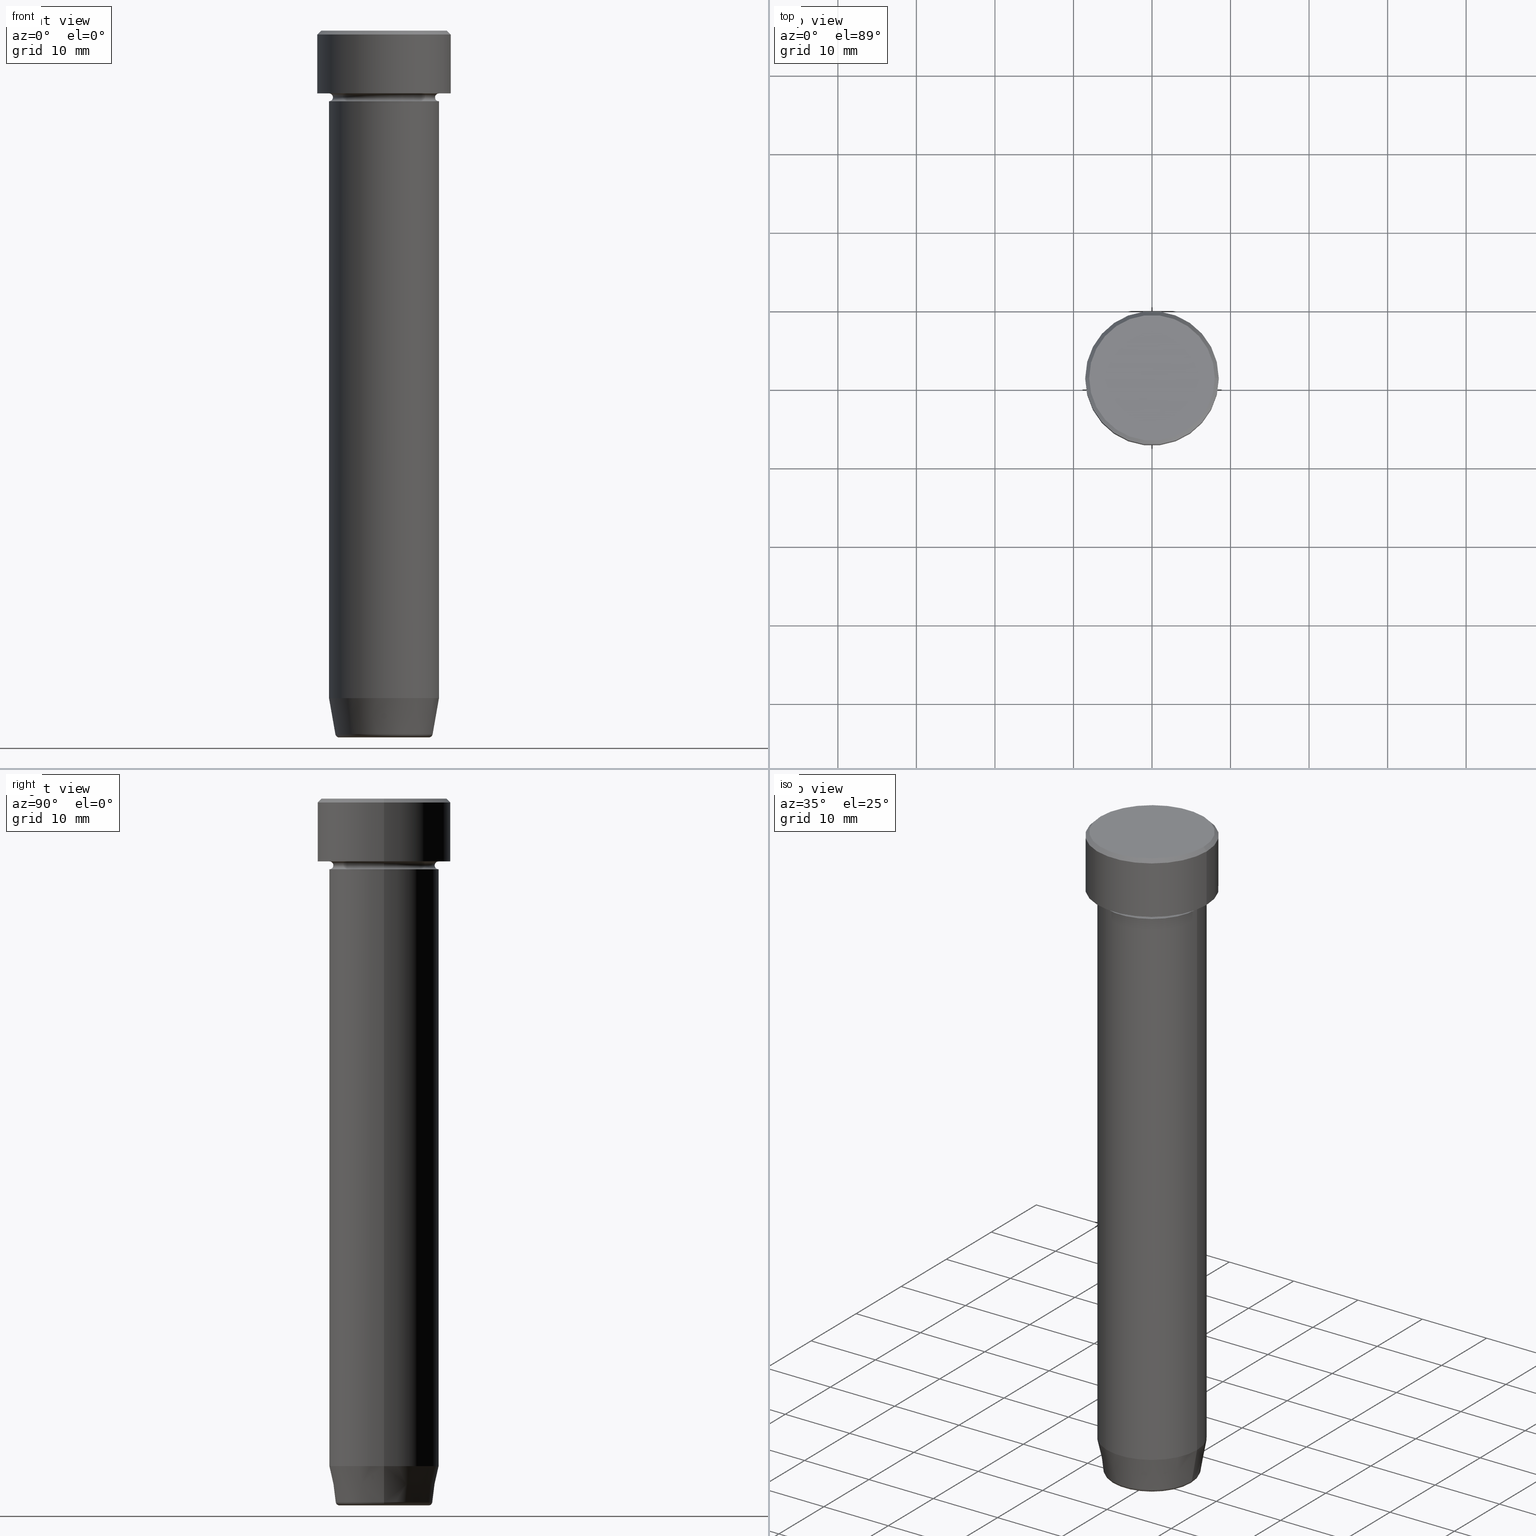
[diagram: canonical four-view strip — front | top / right | iso, engineering-drawing reading convention]
A machine part, canonical four-view strip (front | top / right | iso — engineering-drawing reading convention). The complete STEP part file that produces these views, byte-faithful:
ISO-10303-21;
HEADER;
FILE_DESCRIPTION (( 'STEP AP203' ),
    '1' );
FILE_NAME ('5708.STEP',
    '2024-01-02T23:20:32',
    ( '' ),
    ( '' ),
    'SwSTEP 2.0',
    'SolidWorks 2019',
    '' );
FILE_SCHEMA (( 'CONFIG_CONTROL_DESIGN' ));
ENDSEC;

DATA;
#1 = EDGE_CURVE ( 'NONE', #329, #152, #398, .T. ) ;
#2 = EDGE_CURVE ( 'NONE', #10, #289, #490, .T. ) ;
#3 = DATE_TIME_ROLE ( 'classification_date' ) ;
#4 = DIRECTION ( 'NONE',  ( -0.000000000000000000, -0.000000000000000000, 1.000000000000000000 ) ) ;
#5 = DIRECTION ( 'NONE',  ( 1.000000000000000000, 0.000000000000000000, 0.000000000000000000 ) ) ;
#6 = AXIS2_PLACEMENT_3D ( 'NONE', #166, #589, #526 ) ;
#7 = AXIS2_PLACEMENT_3D ( 'NONE', #474, #238, #11 ) ;
#8 = DIRECTION ( 'NONE',  ( 0.1736481776669304145, 0.000000000000000000, 0.9848077530122080203 ) ) ;
#9 = FACE_OUTER_BOUND ( 'NONE', #115, .T. ) ;
#10 = VERTEX_POINT ( 'NONE', #430 ) ;
#11 = DIRECTION ( 'NONE',  ( -1.000000000000000000, 0.000000000000000000, 0.000000000000000000 ) ) ;
#12 = ORIENTED_EDGE ( 'NONE', *, *, #503, .F. ) ;
#13 = AXIS2_PLACEMENT_3D ( 'NONE', #127, #298, #435 ) ;
#14 = DIRECTION ( 'NONE',  ( 1.000000000000000000, 0.000000000000000000, 0.000000000000000000 ) ) ;
#15 = ORIENTED_EDGE ( 'NONE', *, *, #1, .T. ) ;
#16 = EDGE_CURVE ( 'NONE', #152, #329, #527, .T. ) ;
#17 = APPROVAL ( #363, 'NEUR�EN�' ) ;
#18 = ADVANCED_FACE ( 'NONE', ( #297 ), #76, .T. ) ;
#19 = CARTESIAN_POINT ( 'NONE',  ( -7.000000000000000888, 0.000000000000000000, -8.500000000000000000 ) ) ;
#20 = EDGE_LOOP ( 'NONE', ( #566, #425, #274, #246 ) ) ;
#21 = ORIENTED_EDGE ( 'NONE', *, *, #156, .T. ) ;
#22 = ORIENTED_EDGE ( 'NONE', *, *, #574, .T. ) ;
#23 = CARTESIAN_POINT ( 'NONE',  ( -8.000000000000000000, 0.000000000000000000, 0.000000000000000000 ) ) ;
#24 = MANIFOLD_SOLID_BREP ( 'Zkosen�1', #83 ) ;
#25 = ORIENTED_EDGE ( 'NONE', *, *, #514, .T. ) ;
#26 = VERTEX_POINT ( 'NONE', #172 ) ;
#27 = MANIFOLD_SOLID_BREP ( 'Zaoblit4', #262 ) ;
#28 = DIRECTION ( 'NONE',  ( 1.000000000000000000, 0.000000000000000000, 0.000000000000000000 ) ) ;
#29 = DIRECTION ( 'NONE',  ( 1.000000000000000000, 0.000000000000000000, 0.000000000000000000 ) ) ;
#30 = DIRECTION ( 'NONE',  ( 1.000000000000000000, 0.000000000000000000, 0.000000000000000000 ) ) ;
#31 =( LENGTH_UNIT ( ) NAMED_UNIT ( * ) SI_UNIT ( .MILLI., .METRE. ) );
#32 = DIRECTION ( 'NONE',  ( -0.000000000000000000, -0.000000000000000000, 1.000000000000000000 ) ) ;
#33 = LOCAL_TIME ( 0, 20, 32.00000000000000000, #92 ) ;
#34 = AXIS2_PLACEMENT_3D ( 'NONE', #269, #502, #324 ) ;
#35 = EDGE_CURVE ( 'NONE', #397, #561, #563, .T. ) ;
#36 = EDGE_CURVE ( 'NONE', #10, #407, #271, .T. ) ;
#37 = FACE_OUTER_BOUND ( 'NONE', #525, .T. ) ;
#38 = EDGE_CURVE ( 'NONE', #418, #429, #314, .T. ) ;
#39 = CARTESIAN_POINT ( 'NONE',  ( 6.191219157375138948, 0.000000000000000000, -89.58682408883345261 ) ) ;
#40 = CYLINDRICAL_SURFACE ( 'NONE', #144, 6.999999999999999112 ) ;
#41 = EDGE_CURVE ( 'NONE', #138, #429, #303, .T. ) ;
#42 = COORDINATED_UNIVERSAL_TIME_OFFSET ( 1, 0, .AHEAD. ) ;
#43 = CARTESIAN_POINT ( 'NONE',  ( 0.000000000000000000, 0.000000000000000000, -8.000000000000000000 ) ) ;
#44 = CIRCLE ( 'NONE', #328, 8.500000000000000000 ) ;
#45 = TOROIDAL_SURFACE ( 'NONE', #460, 7.000000000000000888, 0.5000000000000000000 ) ;
#46 = PERSON_AND_ORGANIZATION ( #85, #449 ) ;
#47 = DIRECTION ( 'NONE',  ( 1.000000000000000000, 0.000000000000000000, 0.000000000000000000 ) ) ;
#48 = ORIENTED_EDGE ( 'NONE', *, *, #156, .F. ) ;
#49 = EDGE_CURVE ( 'NONE', #418, #96, #94, .T. ) ;
#50 = EDGE_CURVE ( 'NONE', #287, #285, #212, .T. ) ;
#51 = CARTESIAN_POINT ( 'NONE',  ( 0.000000000000000000, 0.000000000000000000, 0.000000000000000000 ) ) ;
#52 = CARTESIAN_POINT ( 'NONE',  ( 0.000000000000000000, 0.000000000000000000, -8.500000000000000000 ) ) ;
#53 = DIRECTION ( 'NONE',  ( -1.000000000000000000, 0.000000000000000000, 0.000000000000000000 ) ) ;
#54 = AXIS2_PLACEMENT_3D ( 'NONE', #120, #258, #266 ) ;
#55 = AXIS2_PLACEMENT_3D ( 'NONE', #87, #267, #547 ) ;
#56 = DIRECTION ( 'NONE',  ( 1.000000000000000000, 0.000000000000000000, 0.000000000000000000 ) ) ;
#57 = EDGE_CURVE ( 'NONE', #285, #287, #550, .T. ) ;
#58 = ORIENTED_EDGE ( 'NONE', *, *, #50, .F. ) ;
#59 = CARTESIAN_POINT ( 'NONE',  ( 0.000000000000000000, 4.898587196589413815E-15, -90.00000000000000000 ) ) ;
#60 = VERTEX_POINT ( 'NONE', #39 ) ;
#61 = ADVANCED_BREP_SHAPE_REPRESENTATION ( '5708', ( #24, #27, #292 ), #431 ) ;
#62 = AXIS2_PLACEMENT_3D ( 'NONE', #170, #484, #82 ) ;
#63 = CARTESIAN_POINT ( 'NONE',  ( -6.999999999999999112, 8.572527594031472204E-16, -84.99999999999998579 ) ) ;
#64 = ORIENTED_EDGE ( 'NONE', *, *, #351, .F. ) ;
#65 = EDGE_LOOP ( 'NONE', ( #573, #64 ) ) ;
#66 = PRODUCT_DEFINITION ( 'NEZN�M�', '', #402, #222 ) ;
#67 = ADVANCED_FACE ( 'NONE', ( #345 ), #128, .T. ) ;
#68 = CONICAL_SURFACE ( 'NONE', #100, 6.118365096457672792, 0.1745329251994330311 ) ;
#69 = CYLINDRICAL_SURFACE ( 'NONE', #167, 6.999999999999999112 ) ;
#70 = ORIENTED_EDGE ( 'NONE', *, *, #16, .T. ) ;
#71 = VERTEX_POINT ( 'NONE', #590 ) ;
#72 = CARTESIAN_POINT ( 'NONE',  ( 0.000000000000000000, 0.000000000000000000, -90.00000000000000000 ) ) ;
#73 = EDGE_CURVE ( 'NONE', #289, #112, #157, .T. ) ;
#74 = ORIENTED_EDGE ( 'NONE', *, *, #125, .F. ) ;
#75 = DIRECTION ( 'NONE',  ( -0.000000000000000000, -0.000000000000000000, 1.000000000000000000 ) ) ;
#76 = PLANE ( 'NONE',  #150 ) ;
#77 = CIRCLE ( 'NONE', #556, 0.5000000000000004441 ) ;
#78 = LINE ( 'NONE', #441, #183 ) ;
#79 = TOROIDAL_SURFACE ( 'NONE', #522, 5.698815280869032662, 0.5000000000000000000 ) ;
#80 = ORIENTED_EDGE ( 'NONE', *, *, #351, .T. ) ;
#81 = DIRECTION ( 'NONE',  ( -1.000000000000000000, 0.000000000000000000, 0.000000000000000000 ) ) ;
#82 = DIRECTION ( 'NONE',  ( -1.000000000000000000, -1.224646799147351482E-16, 0.000000000000000000 ) ) ;
#83 = CLOSED_SHELL ( 'NONE', ( #535, #147, #410, #277, #564, #18, #537, #88, #260, #463, #196, #585, #268 ) ) ;
#84 = DIRECTION ( 'NONE',  ( 0.000000000000000000, 0.000000000000000000, -1.000000000000000000 ) ) ;
#85 = PERSON ( 'NEUR�EN�', 'NEUR�EN�', 'NEUR�EN�', ('NEUR�EN�'), ('NEUR�EN�'), ('NEUR�EN�') ) ;
#86 = DIRECTION ( 'NONE',  ( 1.000000000000000000, 0.000000000000000000, 0.000000000000000000 ) ) ;
#87 = CARTESIAN_POINT ( 'NONE',  ( 0.000000000000000000, 0.000000000000000000, 0.000000000000000000 ) ) ;
#88 = ADVANCED_FACE ( 'NONE', ( #307 ), #479, .T. ) ;
#89 = SHAPE_DEFINITION_REPRESENTATION ( #132, #61 ) ;
#90 = CARTESIAN_POINT ( 'NONE',  ( 0.000000000000000000, 0.000000000000000000, -89.50000000000000000 ) ) ;
#91 = ORIENTED_EDGE ( 'NONE', *, *, #125, .T. ) ;
#92 = COORDINATED_UNIVERSAL_TIME_OFFSET ( 1, 0, .AHEAD. ) ;
#93 = CARTESIAN_POINT ( 'NONE',  ( 0.000000000000000000, 8.500000000000000000, -8.000000000000000000 ) ) ;
#94 = CIRCLE ( 'NONE', #62, 0.5000000000000004441 ) ;
#95 = EDGE_CURVE ( 'NONE', #319, #289, #78, .T. ) ;
#96 = VERTEX_POINT ( 'NONE', #395 ) ;
#97 = PERSON_AND_ORGANIZATION_ROLE ( 'design_supplier' ) ;
#98 = EDGE_CURVE ( 'NONE', #407, #10, #102, .T. ) ;
#99 = CARTESIAN_POINT ( 'NONE',  ( 0.000000000000000000, 0.000000000000000000, -8.500000000000000000 ) ) ;
#100 = AXIS2_PLACEMENT_3D ( 'NONE', #198, #107, #56 ) ;
#101 = EDGE_CURVE ( 'NONE', #331, #285, #233, .T. ) ;
#102 = CIRCLE ( 'NONE', #55, 8.000000000000000000 ) ;
#103 = PERSON_AND_ORGANIZATION ( #85, #449 ) ;
#104 = FACE_OUTER_BOUND ( 'NONE', #333, .T. ) ;
#105 = APPLICATION_PROTOCOL_DEFINITION ( 'international standard', 'config_control_design', 1994, #310 ) ;
#106 = DIRECTION ( 'NONE',  ( -0.000000000000000000, -0.000000000000000000, 1.000000000000000000 ) ) ;
#107 = DIRECTION ( 'NONE',  ( -0.000000000000000000, -0.000000000000000000, 1.000000000000000000 ) ) ;
#108 = CIRCLE ( 'NONE', #6, 6.191219157375138948 ) ;
#109 = FACE_OUTER_BOUND ( 'NONE', #202, .T. ) ;
#110 = ORIENTED_EDGE ( 'NONE', *, *, #574, .F. ) ;
#111 = DIRECTION ( 'NONE',  ( 1.000000000000000000, 0.000000000000000000, 0.000000000000000000 ) ) ;
#112 = VERTEX_POINT ( 'NONE', #560 ) ;
#113 = APPROVAL ( #598, 'NEUR�EN�' ) ;
#114 = DIRECTION ( 'NONE',  ( -0.000000000000000000, -0.000000000000000000, 1.000000000000000000 ) ) ;
#115 = EDGE_LOOP ( 'NONE', ( #426, #192, #58, #244 ) ) ;
#116 = ORIENTED_EDGE ( 'NONE', *, *, #38, .T. ) ;
#117 = CIRCLE ( 'NONE', #458, 6.500000000000000888 ) ;
#118 = CARTESIAN_POINT ( 'NONE',  ( 5.698815280869032662, 0.000000000000000000, -89.50000000000000000 ) ) ;
#119 = EDGE_LOOP ( 'NONE', ( #270, #513, #415, #74 ) ) ;
#120 = CARTESIAN_POINT ( 'NONE',  ( 0.000000000000000000, 0.000000000000000000, -22.00000000000000000 ) ) ;
#121 = ORIENTED_EDGE ( 'NONE', *, *, #41, .T. ) ;
#122 = DIRECTION ( 'NONE',  ( 1.000000000000000000, 0.000000000000000000, 0.000000000000000000 ) ) ;
#123 = CONICAL_SURFACE ( 'NONE', #300, 6.118365096457672792, 0.1745329251994330311 ) ;
#124 = CARTESIAN_POINT ( 'NONE',  ( 6.999999999999999112, 0.000000000000000000, 0.000000000000000000 ) ) ;
#125 = EDGE_CURVE ( 'NONE', #407, #112, #280, .T. ) ;
#126 = AXIS2_PLACEMENT_3D ( 'NONE', #223, #599, #400 ) ;
#127 = CARTESIAN_POINT ( 'NONE',  ( 0.000000000000000000, 0.000000000000000000, 0.000000000000000000 ) ) ;
#128 = CYLINDRICAL_SURFACE ( 'NONE', #432, 6.999999999999999112 ) ;
#129 = ADVANCED_FACE ( 'NONE', ( #411 ), #509, .T. ) ;
#130 = PLANE ( 'NONE',  #13 ) ;
#131 = DIRECTION ( 'NONE',  ( 0.7071067811865487940, 8.659560562354950115E-17, -0.7071067811865463515 ) ) ;
#132 = PRODUCT_DEFINITION_SHAPE ( 'NONE', 'NONE',  #66 ) ;
#133 = CALENDAR_DATE ( 2024, 3, 1 ) ;
#134 = AXIS2_PLACEMENT_3D ( 'NONE', #530, #263, #251 ) ;
#135 = CIRCLE ( 'NONE', #533, 7.000000000000000000 ) ;
#136 = DIRECTION ( 'NONE',  ( 0.000000000000000000, 0.000000000000000000, 1.000000000000000000 ) ) ;
#137 = PLANE ( 'NONE',  #218 ) ;
#138 = VERTEX_POINT ( 'NONE', #187 ) ;
#139 = COORDINATED_UNIVERSAL_TIME_OFFSET ( 1, 0, .AHEAD. ) ;
#140 = CARTESIAN_POINT ( 'NONE',  ( -6.999999999999999112, 8.572527594031472204E-16, -22.00000000000000000 ) ) ;
#141 = PERSON_AND_ORGANIZATION ( #85, #449 ) ;
#142 = FACE_OUTER_BOUND ( 'NONE', #20, .T. ) ;
#143 = TOROIDAL_SURFACE ( 'NONE', #265, 7.000000000000000888, 0.5000000000000000000 ) ;
#144 = AXIS2_PLACEMENT_3D ( 'NONE', #447, #106, #5 ) ;
#145 = APPROVAL_ROLE ( '' ) ;
#146 = CARTESIAN_POINT ( 'NONE',  ( 0.000000000000000000, 0.000000000000000000, -22.00000000000000000 ) ) ;
#147 = ADVANCED_FACE ( 'NONE', ( #142 ), #401, .F. ) ;
#148 = EDGE_CURVE ( 'NONE', #138, #199, #559, .T. ) ;
#149 = LINE ( 'NONE', #281, #480 ) ;
#150 = AXIS2_PLACEMENT_3D ( 'NONE', #477, #539, #389 ) ;
#151 = CARTESIAN_POINT ( 'NONE',  ( 0.000000000000000000, 0.000000000000000000, 0.000000000000000000 ) ) ;
#152 = VERTEX_POINT ( 'NONE', #185 ) ;
#153 = AXIS2_PLACEMENT_3D ( 'NONE', #489, #346, #476 ) ;
#154 = APPROVAL_PERSON_ORGANIZATION ( #141, #113, #229 ) ;
#155 = EDGE_CURVE ( 'NONE', #60, #287, #445, .T. ) ;
#156 = EDGE_CURVE ( 'NONE', #429, #26, #339, .T. ) ;
#157 = CIRCLE ( 'NONE', #450, 8.500000000000000000 ) ;
#158 = DIRECTION ( 'NONE',  ( 0.000000000000000000, -0.000000000000000000, 1.000000000000000000 ) ) ;
#159 = EDGE_LOOP ( 'NONE', ( #383, #555, #337, #163 ) ) ;
#160 = ADVANCED_FACE ( 'NONE', ( #309 ), #79, .T. ) ;
#161 = FACE_OUTER_BOUND ( 'NONE', #571, .T. ) ;
#162 = EDGE_LOOP ( 'NONE', ( #468, #446, #48, #239 ) ) ;
#163 = ORIENTED_EDGE ( 'NONE', *, *, #1, .F. ) ;
#164 = DIRECTION ( 'NONE',  ( 0.000000000000000000, 0.000000000000000000, -1.000000000000000000 ) ) ;
#165 = VERTEX_POINT ( 'NONE', #362 ) ;
#166 = CARTESIAN_POINT ( 'NONE',  ( 0.000000000000000000, 0.000000000000000000, -89.58682408883345261 ) ) ;
#167 = AXIS2_PLACEMENT_3D ( 'NONE', #413, #325, #462 ) ;
#168 = ORIENTED_EDGE ( 'NONE', *, *, #353, .F. ) ;
#169 = CARTESIAN_POINT ( 'NONE',  ( 0.000000000000000000, 0.000000000000000000, -8.500000000000000000 ) ) ;
#170 = CARTESIAN_POINT ( 'NONE',  ( 7.000000000000000888, 8.572527594031474176E-16, -8.500000000000000000 ) ) ;
#171 = CYLINDRICAL_SURFACE ( 'NONE', #243, 8.500000000000000000 ) ;
#172 = CARTESIAN_POINT ( 'NONE',  ( -7.000000000000000888, 8.572527594031474176E-16, -9.000000000000001776 ) ) ;
#173 = CC_DESIGN_APPROVAL ( #334, ( #349 ) ) ;
#174 = DIRECTION ( 'NONE',  ( -0.000000000000000000, -0.000000000000000000, 1.000000000000000000 ) ) ;
#175 = EDGE_CURVE ( 'NONE', #199, #138, #404, .T. ) ;
#176 = ORIENTED_EDGE ( 'NONE', *, *, #216, .T. ) ;
#177 = DIRECTION ( 'NONE',  ( 0.000000000000000000, 0.000000000000000000, -1.000000000000000000 ) ) ;
#178 = ORIENTED_EDGE ( 'NONE', *, *, #50, .T. ) ;
#179 = DATE_AND_TIME ( #315, #481 ) ;
#180 = ORIENTED_EDGE ( 'NONE', *, *, #577, .T. ) ;
#181 = APPROVAL_DATE_TIME ( #279, #17 ) ;
#182 = CARTESIAN_POINT ( 'NONE',  ( -6.118365096457672792, 7.492836231391776623E-16, -90.00000000000000000 ) ) ;
#183 = VECTOR ( 'NONE', #32, 1000.000000000000000 ) ;
#184 = ADVANCED_FACE ( 'NONE', ( #186 ), #40, .T. ) ;
#185 = CARTESIAN_POINT ( 'NONE',  ( 6.999999999999999112, 0.000000000000000000, -22.00000000000000000 ) ) ;
#186 = FACE_OUTER_BOUND ( 'NONE', #494, .T. ) ;
#187 = CARTESIAN_POINT ( 'NONE',  ( 6.999999999999999112, 0.000000000000000000, -22.00000000000000000 ) ) ;
#188 = LOCAL_TIME ( 0, 20, 32.00000000000000000, #405 ) ;
#189 = ORIENTED_EDGE ( 'NONE', *, *, #302, .F. ) ;
#190 = DIRECTION ( 'NONE',  ( -0.000000000000000000, -0.000000000000000000, 1.000000000000000000 ) ) ;
#191 = DIRECTION ( 'NONE',  ( -0.000000000000000000, -0.000000000000000000, 1.000000000000000000 ) ) ;
#192 = ORIENTED_EDGE ( 'NONE', *, *, #101, .T. ) ;
#193 = CARTESIAN_POINT ( 'NONE',  ( 0.000000000000000000, 0.000000000000000000, -9.000000000000001776 ) ) ;
#194 = ORIENTED_EDGE ( 'NONE', *, *, #529, .F. ) ;
#195 = CONICAL_SURFACE ( 'NONE', #491, 8.000000000000000000, 0.7853981633974500554 ) ;
#196 = ADVANCED_FACE ( 'NONE', ( #104 ), #45, .F. ) ;
#197 = CIRCLE ( 'NONE', #370, 8.500000000000000000 ) ;
#198 = CARTESIAN_POINT ( 'NONE',  ( 0.000000000000000000, 0.000000000000000000, -90.00000000000000000 ) ) ;
#199 = VERTEX_POINT ( 'NONE', #140 ) ;
#200 = EDGE_LOOP ( 'NONE', ( #206, #342, #576, #295 ) ) ;
#201 = DIRECTION ( 'NONE',  ( -0.000000000000000000, -1.000000000000000000, -0.000000000000000000 ) ) ;
#202 = EDGE_LOOP ( 'NONE', ( #70, #15 ) ) ;
#203 = ORIENTED_EDGE ( 'NONE', *, *, #503, .T. ) ;
#204 = DIRECTION ( 'NONE',  ( 0.000000000000000000, -1.000000000000000000, 0.000000000000000000 ) ) ;
#205 = ORIENTED_EDGE ( 'NONE', *, *, #35, .F. ) ;
#206 = ORIENTED_EDGE ( 'NONE', *, *, #49, .F. ) ;
#207 = AXIS2_PLACEMENT_3D ( 'NONE', #59, #158, #459 ) ;
#208 = DIRECTION ( 'NONE',  ( 1.000000000000000000, 0.000000000000000000, 0.000000000000000000 ) ) ;
#209 = APPLICATION_CONTEXT ( 'configuration controlled 3d designs of mechanical parts and assemblies' ) ;
#210 = CARTESIAN_POINT ( 'NONE',  ( 0.000000000000000000, 0.000000000000000000, -90.00000000000000000 ) ) ;
#211 = CARTESIAN_POINT ( 'NONE',  ( 0.000000000000000000, 0.000000000000000000, -22.00000000000000000 ) ) ;
#212 = CIRCLE ( 'NONE', #438, 6.999999999999999112 ) ;
#213 = LINE ( 'NONE', #344, #596 ) ;
#214 = CARTESIAN_POINT ( 'NONE',  ( 0.000000000000000000, 0.000000000000000000, -84.99999999999998579 ) ) ;
#215 = TOROIDAL_SURFACE ( 'NONE', #134, 7.000000000000000888, 0.5000000000000000000 ) ;
#216 = EDGE_CURVE ( 'NONE', #520, #96, #378, .T. ) ;
#217 = PLANE ( 'NONE',  #54 ) ;
#218 = AXIS2_PLACEMENT_3D ( 'NONE', #93, #273, #549 ) ;
#219 = CARTESIAN_POINT ( 'NONE',  ( 0.000000000000000000, 0.000000000000000000, 0.000000000000000000 ) ) ;
#220 = DATE_AND_TIME ( #403, #510 ) ;
#221 = DIRECTION ( 'NONE',  ( 0.000000000000000000, 0.000000000000000000, -1.000000000000000000 ) ) ;
#222 = DESIGN_CONTEXT ( 'detailed design', #209, 'design' ) ;
#223 = CARTESIAN_POINT ( 'NONE',  ( -7.000000000000000888, 8.572527594031474176E-16, -8.500000000000000000 ) ) ;
#224 = CIRCLE ( 'NONE', #579, 6.191219157375138948 ) ;
#225 = DIRECTION ( 'NONE',  ( 1.000000000000000000, 0.000000000000000000, 0.000000000000000000 ) ) ;
#226 = PERSON_AND_ORGANIZATION ( #85, #449 ) ;
#227 = DIRECTION ( 'NONE',  ( 0.000000000000000000, 0.000000000000000000, -1.000000000000000000 ) ) ;
#228 = CC_DESIGN_DATE_AND_TIME_ASSIGNMENT ( #220, #592, ( #66 ) ) ;
#229 = APPROVAL_ROLE ( '' ) ;
#230 = DIRECTION ( 'NONE',  ( -1.000000000000000000, 0.000000000000000000, 0.000000000000000000 ) ) ;
#231 = AXIS2_PLACEMENT_3D ( 'NONE', #211, #434, #208 ) ;
#232 = ORIENTED_EDGE ( 'NONE', *, *, #551, .F. ) ;
#233 = LINE ( 'NONE', #182, #512 ) ;
#234 = CIRCLE ( 'NONE', #543, 0.5000000000000004441 ) ;
#235 = EDGE_LOOP ( 'NONE', ( #205, #22, #194, #376 ) ) ;
#236 = CARTESIAN_POINT ( 'NONE',  ( 6.999999999999999112, 0.000000000000000000, -84.99999999999998579 ) ) ;
#237 = ORIENTED_EDGE ( 'NONE', *, *, #35, .T. ) ;
#238 = DIRECTION ( 'NONE',  ( 0.000000000000000000, 0.000000000000000000, -1.000000000000000000 ) ) ;
#239 = ORIENTED_EDGE ( 'NONE', *, *, #41, .F. ) ;
#240 = EDGE_LOOP ( 'NONE', ( #373, #237 ) ) ;
#241 = CARTESIAN_POINT ( 'NONE',  ( 8.500000000000000000, 0.000000000000000000, -0.4999999999999987232 ) ) ;
#242 = ORIENTED_EDGE ( 'NONE', *, *, #248, .T. ) ;
#243 = AXIS2_PLACEMENT_3D ( 'NONE', #440, #75, #86 ) ;
#244 = ORIENTED_EDGE ( 'NONE', *, *, #155, .F. ) ;
#245 = CARTESIAN_POINT ( 'NONE',  ( 0.000000000000000000, 0.000000000000000000, -8.500000000000000000 ) ) ;
#246 = ORIENTED_EDGE ( 'NONE', *, *, #419, .F. ) ;
#247 = ORIENTED_EDGE ( 'NONE', *, *, #544, .T. ) ;
#248 = EDGE_CURVE ( 'NONE', #71, #26, #283, .T. ) ;
#249 = PLANE ( 'NONE',  #207 ) ;
#250 = ORIENTED_EDGE ( 'NONE', *, *, #488, .F. ) ;
#251 = DIRECTION ( 'NONE',  ( -1.000000000000000000, 0.000000000000000000, 0.000000000000000000 ) ) ;
#252 = DIRECTION ( 'NONE',  ( 1.000000000000000000, 0.000000000000000000, 0.000000000000000000 ) ) ;
#253 = AXIS2_PLACEMENT_3D ( 'NONE', #443, #305, #252 ) ;
#254 = AXIS2_PLACEMENT_3D ( 'NONE', #286, #114, #14 ) ;
#255 = LINE ( 'NONE', #304, #375 ) ;
#256 = AXIS2_PLACEMENT_3D ( 'NONE', #99, #227, #230 ) ;
#257 = DIRECTION ( 'NONE',  ( 0.000000000000000000, -1.000000000000000000, 0.000000000000000000 ) ) ;
#258 = DIRECTION ( 'NONE',  ( 0.000000000000000000, 0.000000000000000000, -1.000000000000000000 ) ) ;
#259 = CARTESIAN_POINT ( 'NONE',  ( 0.000000000000000000, 0.000000000000000000, -0.4999999999999987232 ) ) ;
#260 = ADVANCED_FACE ( 'NONE', ( #317, #312 ), #137, .T. ) ;
#261 = EDGE_CURVE ( 'NONE', #319, #165, #197, .T. ) ;
#262 = CLOSED_SHELL ( 'NONE', ( #129, #355, #184, #469, #67, #365, #318, #160 ) ) ;
#263 = DIRECTION ( 'NONE',  ( 0.000000000000000000, 0.000000000000000000, -1.000000000000000000 ) ) ;
#264 = DIRECTION ( 'NONE',  ( 1.000000000000000000, 0.000000000000000000, 0.000000000000000000 ) ) ;
#265 = AXIS2_PLACEMENT_3D ( 'NONE', #245, #424, #294 ) ;
#266 = DIRECTION ( 'NONE',  ( -1.000000000000000000, 0.000000000000000000, -0.000000000000000000 ) ) ;
#267 = DIRECTION ( 'NONE',  ( -0.000000000000000000, -0.000000000000000000, 1.000000000000000000 ) ) ;
#268 = ADVANCED_FACE ( 'NONE', ( #467 ), #412, .T. ) ;
#269 = CARTESIAN_POINT ( 'NONE',  ( 0.000000000000000000, 0.000000000000000000, -22.00000000000000000 ) ) ;
#270 = ORIENTED_EDGE ( 'NONE', *, *, #36, .F. ) ;
#271 = CIRCLE ( 'NONE', #466, 8.000000000000000000 ) ;
#272 = CALENDAR_DATE ( 2024, 3, 1 ) ;
#273 = DIRECTION ( 'NONE',  ( 0.000000000000000000, 0.000000000000000000, -1.000000000000000000 ) ) ;
#274 = ORIENTED_EDGE ( 'NONE', *, *, #216, .F. ) ;
#275 = DATE_AND_TIME ( #272, #188 ) ;
#276 = DIRECTION ( 'NONE',  ( -0.000000000000000000, -0.000000000000000000, 1.000000000000000000 ) ) ;
#277 = ADVANCED_FACE ( 'NONE', ( #330 ), #69, .T. ) ;
#278 = DIRECTION ( 'NONE',  ( -0.000000000000000000, -0.000000000000000000, 1.000000000000000000 ) ) ;
#279 = DATE_AND_TIME ( #548, #33 ) ;
#280 = LINE ( 'NONE', #451, #423 ) ;
#281 = CARTESIAN_POINT ( 'NONE',  ( -8.500000000000000000, 1.040949779275250140E-15, 0.000000000000000000 ) ) ;
#282 = AXIS2_PLACEMENT_3D ( 'NONE', #336, #515, #111 ) ;
#283 = CIRCLE ( 'NONE', #126, 0.5000000000000004441 ) ;
#284 = DIRECTION ( 'NONE',  ( -0.000000000000000000, -0.000000000000000000, 1.000000000000000000 ) ) ;
#285 = VERTEX_POINT ( 'NONE', #63 ) ;
#286 = CARTESIAN_POINT ( 'NONE',  ( 0.000000000000000000, 0.000000000000000000, -8.500000000000000000 ) ) ;
#287 = VERTEX_POINT ( 'NONE', #236 ) ;
#288 = AXIS2_PLACEMENT_3D ( 'NONE', #436, #257, #84 ) ;
#289 = VERTEX_POINT ( 'NONE', #241 ) ;
#290 = FACE_OUTER_BOUND ( 'NONE', #240, .T. ) ;
#291 = ORIENTED_EDGE ( 'NONE', *, *, #73, .F. ) ;
#292 = AXIS2_PLACEMENT_3D ( 'NONE', #51, #136, #308 ) ;
#293 = VECTOR ( 'NONE', #8, 1000.000000000000227 ) ;
#294 = DIRECTION ( 'NONE',  ( 1.000000000000000000, 0.000000000000000000, 0.000000000000000000 ) ) ;
#295 = ORIENTED_EDGE ( 'NONE', *, *, #577, .F. ) ;
#296 = CARTESIAN_POINT ( 'NONE',  ( 5.698815280869032662, 0.000000000000000000, -90.00000000000000000 ) ) ;
#297 = FACE_OUTER_BOUND ( 'NONE', #448, .T. ) ;
#298 = DIRECTION ( 'NONE',  ( 0.000000000000000000, -0.000000000000000000, 1.000000000000000000 ) ) ;
#299 = DIRECTION ( 'NONE',  ( -0.000000000000000000, -0.000000000000000000, 1.000000000000000000 ) ) ;
#300 = AXIS2_PLACEMENT_3D ( 'NONE', #72, #470, #379 ) ;
#301 = DIRECTION ( 'NONE',  ( 1.000000000000000000, 0.000000000000000000, 0.000000000000000000 ) ) ;
#302 = EDGE_CURVE ( 'NONE', #26, #429, #135, .T. ) ;
#303 = LINE ( 'NONE', #124, #416 ) ;
#304 = CARTESIAN_POINT ( 'NONE',  ( -6.999999999999999112, 8.572527594031472204E-16, 0.000000000000000000 ) ) ;
#305 = DIRECTION ( 'NONE',  ( -0.000000000000000000, -0.000000000000000000, 1.000000000000000000 ) ) ;
#306 = DIRECTION ( 'NONE',  ( -1.000000000000000000, 1.224646799147351482E-16, 0.000000000000000000 ) ) ;
#307 = FACE_OUTER_BOUND ( 'NONE', #472, .T. ) ;
#308 = DIRECTION ( 'NONE',  ( 1.000000000000000000, 0.000000000000000000, 0.000000000000000000 ) ) ;
#309 = FACE_OUTER_BOUND ( 'NONE', #414, .T. ) ;
#310 = APPLICATION_CONTEXT ( 'configuration controlled 3d designs of mechanical parts and assemblies' ) ;
#311 = APPLICATION_PROTOCOL_DEFINITION ( 'international standard', 'config_control_design', 1994, #209 ) ;
#312 = FACE_OUTER_BOUND ( 'NONE', #65, .T. ) ;
#313 = ORIENTED_EDGE ( 'NONE', *, *, #326, .F. ) ;
#314 = CIRCLE ( 'NONE', #288, 0.5000000000000004441 ) ;
#315 = CALENDAR_DATE ( 2024, 3, 1 ) ;
#316 = CC_DESIGN_PERSON_AND_ORGANIZATION_ASSIGNMENT ( #455, #546, ( #591 ) ) ;
#317 = FACE_BOUND ( 'NONE', #580, .T. ) ;
#318 = ADVANCED_FACE ( 'NONE', ( #290 ), #249, .F. ) ;
#319 = VERTEX_POINT ( 'NONE', #332 ) ;
#320 = APPROVAL_PERSON_ORGANIZATION ( #495, #17, #552 ) ;
#321 = DIRECTION ( 'NONE',  ( 1.000000000000000000, 0.000000000000000000, 0.000000000000000000 ) ) ;
#322 = CC_DESIGN_SECURITY_CLASSIFICATION ( #349, ( #402 ) ) ;
#323 = DATE_AND_TIME ( #133, #421 ) ;
#324 = DIRECTION ( 'NONE',  ( 1.000000000000000000, 0.000000000000000000, 0.000000000000000000 ) ) ;
#325 = DIRECTION ( 'NONE',  ( -0.000000000000000000, -0.000000000000000000, 1.000000000000000000 ) ) ;
#326 = EDGE_CURVE ( 'NONE', #199, #26, #417, .T. ) ;
#327 = DIRECTION ( 'NONE',  ( -0.000000000000000000, -0.000000000000000000, 1.000000000000000000 ) ) ;
#328 = AXIS2_PLACEMENT_3D ( 'NONE', #350, #177, #301 ) ;
#329 = VERTEX_POINT ( 'NONE', #381 ) ;
#330 = FACE_OUTER_BOUND ( 'NONE', #162, .T. ) ;
#331 = VERTEX_POINT ( 'NONE', #507 ) ;
#332 = CARTESIAN_POINT ( 'NONE',  ( 8.500000000000000000, 0.000000000000000000, -8.000000000000000000 ) ) ;
#333 = EDGE_LOOP ( 'NONE', ( #385, #250, #116, #21 ) ) ;
#334 = APPROVAL ( #594, 'NEUR�EN�' ) ;
#335 = ORIENTED_EDGE ( 'NONE', *, *, #95, .T. ) ;
#336 = CARTESIAN_POINT ( 'NONE',  ( 0.000000000000000000, 0.000000000000000000, -8.000000000000000000 ) ) ;
#337 = ORIENTED_EDGE ( 'NONE', *, *, #505, .T. ) ;
#338 = AXIS2_PLACEMENT_3D ( 'NONE', #210, #524, #29 ) ;
#339 = CIRCLE ( 'NONE', #597, 7.000000000000000000 ) ;
#340 = ORIENTED_EDGE ( 'NONE', *, *, #453, .T. ) ;
#341 = CARTESIAN_POINT ( 'NONE',  ( 0.000000000000000000, 0.000000000000000000, 0.000000000000000000 ) ) ;
#342 = ORIENTED_EDGE ( 'NONE', *, *, #488, .T. ) ;
#343 = ORIENTED_EDGE ( 'NONE', *, *, #302, .T. ) ;
#344 = CARTESIAN_POINT ( 'NONE',  ( 6.999999999999999112, 0.000000000000000000, 0.000000000000000000 ) ) ;
#345 = FACE_OUTER_BOUND ( 'NONE', #159, .T. ) ;
#346 = DIRECTION ( 'NONE',  ( -0.000000000000000000, -0.000000000000000000, 1.000000000000000000 ) ) ;
#347 = DIRECTION ( 'NONE',  ( -0.000000000000000000, -0.000000000000000000, 1.000000000000000000 ) ) ;
#348 = EDGE_LOOP ( 'NONE', ( #516, #465 ) ) ;
#349 = SECURITY_CLASSIFICATION ( '', '', #360 ) ;
#350 = CARTESIAN_POINT ( 'NONE',  ( 0.000000000000000000, 0.000000000000000000, -0.4999999999999987232 ) ) ;
#351 = EDGE_CURVE ( 'NONE', #165, #319, #393, .T. ) ;
#352 = CARTESIAN_POINT ( 'NONE',  ( 0.000000000000000000, 0.000000000000000000, 0.000000000000000000 ) ) ;
#353 = EDGE_CURVE ( 'NONE', #71, #418, #499, .T. ) ;
#354 = CARTESIAN_POINT ( 'NONE',  ( 0.000000000000000000, 0.000000000000000000, -89.58682408883345261 ) ) ;
#355 = ADVANCED_FACE ( 'NONE', ( #9 ), #123, .T. ) ;
#356 = CARTESIAN_POINT ( 'NONE',  ( 0.000000000000000000, 0.000000000000000000, 0.000000000000000000 ) ) ;
#357 = VECTOR ( 'NONE', #131, 1000.000000000000000 ) ;
#358 = PERSON_AND_ORGANIZATION ( #85, #449 ) ;
#359 = DIRECTION ( 'NONE',  ( -0.000000000000000000, -0.000000000000000000, 1.000000000000000000 ) ) ;
#360 = SECURITY_CLASSIFICATION_LEVEL ( 'unclassified' ) ;
#361 = AXIS2_PLACEMENT_3D ( 'NONE', #409, #190, #225 ) ;
#362 = CARTESIAN_POINT ( 'NONE',  ( -8.500000000000000000, 1.040949779275250140E-15, -8.000000000000000000 ) ) ;
#363 = APPROVAL_STATUS ( 'not_yet_approved' ) ;
#364 = DIRECTION ( 'NONE',  ( -0.000000000000000000, -0.000000000000000000, 1.000000000000000000 ) ) ;
#365 = ADVANCED_FACE ( 'NONE', ( #428 ), #68, .T. ) ;
#366 = DIRECTION ( 'NONE',  ( -0.000000000000000000, -0.000000000000000000, 1.000000000000000000 ) ) ;
#367 = PERSON_AND_ORGANIZATION_ROLE ( 'classification_officer' ) ;
#368 = APPROVAL_PERSON_ORGANIZATION ( #46, #334, #145 ) ;
#369 = CARTESIAN_POINT ( 'NONE',  ( 0.000000000000000000, 0.000000000000000000, -9.000000000000001776 ) ) ;
#370 = AXIS2_PLACEMENT_3D ( 'NONE', #498, #276, #47 ) ;
#371 = DIRECTION ( 'NONE',  ( -0.000000000000000000, -0.000000000000000000, 1.000000000000000000 ) ) ;
#372 = FACE_OUTER_BOUND ( 'NONE', #570, .T. ) ;
#373 = ORIENTED_EDGE ( 'NONE', *, *, #551, .T. ) ;
#374 = DIRECTION ( 'NONE',  ( -0.000000000000000000, -0.000000000000000000, 1.000000000000000000 ) ) ;
#375 = VECTOR ( 'NONE', #486, 1000.000000000000000 ) ;
#376 = ORIENTED_EDGE ( 'NONE', *, *, #437, .F. ) ;
#377 = ORIENTED_EDGE ( 'NONE', *, *, #155, .T. ) ;
#378 = CIRCLE ( 'NONE', #473, 7.000000000000000888 ) ;
#379 = DIRECTION ( 'NONE',  ( 1.000000000000000000, 0.000000000000000000, 0.000000000000000000 ) ) ;
#380 = ORIENTED_EDGE ( 'NONE', *, *, #38, .F. ) ;
#381 = CARTESIAN_POINT ( 'NONE',  ( -6.999999999999999112, 8.572527594031472204E-16, -22.00000000000000000 ) ) ;
#382 = ORIENTED_EDGE ( 'NONE', *, *, #95, .F. ) ;
#383 = ORIENTED_EDGE ( 'NONE', *, *, #544, .F. ) ;
#384 = DIRECTION ( 'NONE',  ( -1.000000000000000000, 0.000000000000000000, 0.000000000000000000 ) ) ;
#385 = ORIENTED_EDGE ( 'NONE', *, *, #248, .F. ) ;
#386 = CIRCLE ( 'NONE', #153, 7.000000000000000888 ) ;
#387 = DIRECTION ( 'NONE',  ( 0.000000000000000000, 0.000000000000000000, -1.000000000000000000 ) ) ;
#388 = DIRECTION ( 'NONE',  ( -0.000000000000000000, -0.000000000000000000, 1.000000000000000000 ) ) ;
#389 = DIRECTION ( 'NONE',  ( -1.000000000000000000, 0.000000000000000000, -0.000000000000000000 ) ) ;
#390 = AXIS2_PLACEMENT_3D ( 'NONE', #587, #387, #531 ) ;
#391 = CARTESIAN_POINT ( 'NONE',  ( -5.698815280869032662, 6.979035892648284800E-16, -89.50000000000000000 ) ) ;
#392 = CARTESIAN_POINT ( 'NONE',  ( 8.000000000000000000, 9.797174393178825657E-16, 0.000000000000000000 ) ) ;
#393 = CIRCLE ( 'NONE', #282, 8.500000000000000000 ) ;
#394 = DIRECTION ( 'NONE',  ( 1.000000000000000000, 0.000000000000000000, 0.000000000000000000 ) ) ;
#395 = CARTESIAN_POINT ( 'NONE',  ( 7.000000000000000888, 8.572527594031474176E-16, -8.000000000000000000 ) ) ;
#396 = MECHANICAL_CONTEXT ( 'NONE', #310, 'mechanical' ) ;
#397 = VERTEX_POINT ( 'NONE', #572 ) ;
#398 = CIRCLE ( 'NONE', #454, 6.999999999999999112 ) ;
#399 = PERSON_AND_ORGANIZATION ( #85, #449 ) ;
#400 = DIRECTION ( 'NONE',  ( -1.000000000000000000, 1.224646799147351482E-16, 0.000000000000000000 ) ) ;
#401 = TOROIDAL_SURFACE ( 'NONE', #256, 7.000000000000000888, 0.5000000000000000000 ) ;
#402 = PRODUCT_DEFINITION_FORMATION_WITH_SPECIFIED_SOURCE ( 'LIBOVOLN�', '', #591, .NOT_KNOWN. ) ;
#403 = CALENDAR_DATE ( 2024, 3, 1 ) ;
#404 = CIRCLE ( 'NONE', #569, 6.999999999999999112 ) ;
#405 = COORDINATED_UNIVERSAL_TIME_OFFSET ( 1, 0, .AHEAD. ) ;
#406 = DIRECTION ( 'NONE',  ( 1.000000000000000000, 0.000000000000000000, 0.000000000000000000 ) ) ;
#407 = VERTEX_POINT ( 'NONE', #23 ) ;
#408 = APPROVAL_DATE_TIME ( #275, #334 ) ;
#409 = CARTESIAN_POINT ( 'NONE',  ( 0.000000000000000000, 0.000000000000000000, -89.50000000000000000 ) ) ;
#410 = ADVANCED_FACE ( 'NONE', ( #161 ), #143, .F. ) ;
#411 = FACE_OUTER_BOUND ( 'NONE', #235, .T. ) ;
#412 = CONICAL_SURFACE ( 'NONE', #7, 8.000000000000000000, 0.7853981633974500554 ) ;
#413 = CARTESIAN_POINT ( 'NONE',  ( 0.000000000000000000, 0.000000000000000000, 0.000000000000000000 ) ) ;
#414 = EDGE_LOOP ( 'NONE', ( #110, #232, #540, #12 ) ) ;
#415 = ORIENTED_EDGE ( 'NONE', *, *, #514, .F. ) ;
#416 = VECTOR ( 'NONE', #582, 1000.000000000000000 ) ;
#417 = LINE ( 'NONE', #420, #545 ) ;
#418 = VERTEX_POINT ( 'NONE', #575 ) ;
#419 = EDGE_CURVE ( 'NONE', #71, #520, #588, .T. ) ;
#420 = CARTESIAN_POINT ( 'NONE',  ( -6.999999999999999112, 8.572527594031472204E-16, 0.000000000000000000 ) ) ;
#421 = LOCAL_TIME ( 0, 20, 32.00000000000000000, #541 ) ;
#422 = ORIENTED_EDGE ( 'NONE', *, *, #2, .F. ) ;
#423 = VECTOR ( 'NONE', #595, 1000.000000000000000 ) ;
#424 = DIRECTION ( 'NONE',  ( -0.000000000000000000, -0.000000000000000000, 1.000000000000000000 ) ) ;
#425 = ORIENTED_EDGE ( 'NONE', *, *, #49, .T. ) ;
#426 = ORIENTED_EDGE ( 'NONE', *, *, #529, .T. ) ;
#427 = ORIENTED_EDGE ( 'NONE', *, *, #73, .T. ) ;
#428 = FACE_OUTER_BOUND ( 'NONE', #517, .T. ) ;
#429 = VERTEX_POINT ( 'NONE', #518 ) ;
#430 = CARTESIAN_POINT ( 'NONE',  ( 8.000000000000000000, 1.010333609296566550E-15, 0.000000000000000000 ) ) ;
#431 =( GEOMETRIC_REPRESENTATION_CONTEXT ( 3 ) GLOBAL_UNCERTAINTY_ASSIGNED_CONTEXT ( ( #444 ) ) GLOBAL_UNIT_ASSIGNED_CONTEXT ( ( #31, #483, #581 ) ) REPRESENTATION_CONTEXT ( 'NONE', 'WORKASPACE' ) );
#432 = AXIS2_PLACEMENT_3D ( 'NONE', #356, #528, #122 ) ;
#433 = CARTESIAN_POINT ( 'NONE',  ( -7.000000000000000888, 0.000000000000000000, -8.000000000000000000 ) ) ;
#434 = DIRECTION ( 'NONE',  ( -0.000000000000000000, -0.000000000000000000, 1.000000000000000000 ) ) ;
#435 = DIRECTION ( 'NONE',  ( 1.000000000000000000, 0.000000000000000000, 0.000000000000000000 ) ) ;
#436 = CARTESIAN_POINT ( 'NONE',  ( 7.000000000000000888, 0.000000000000000000, -8.500000000000000000 ) ) ;
#437 = EDGE_CURVE ( 'NONE', #561, #60, #234, .T. ) ;
#438 = AXIS2_PLACEMENT_3D ( 'NONE', #214, #299, #593 ) ;
#439 = CC_DESIGN_PERSON_AND_ORGANIZATION_ASSIGNMENT ( #226, #557, ( #66 ) ) ;
#440 = CARTESIAN_POINT ( 'NONE',  ( 0.000000000000000000, 0.000000000000000000, 0.000000000000000000 ) ) ;
#441 = CARTESIAN_POINT ( 'NONE',  ( 8.500000000000000000, 0.000000000000000000, 0.000000000000000000 ) ) ;
#442 = CC_DESIGN_APPROVAL ( #17, ( #66 ) ) ;
#443 = CARTESIAN_POINT ( 'NONE',  ( 0.000000000000000000, 0.000000000000000000, -84.99999999999998579 ) ) ;
#444 = UNCERTAINTY_MEASURE_WITH_UNIT (LENGTH_MEASURE( 1.000000000000000082E-05 ), #31, 'distance_accuracy_value', 'NONE');
#445 = LINE ( 'NONE', #493, #293 ) ;
#446 = ORIENTED_EDGE ( 'NONE', *, *, #326, .T. ) ;
#447 = CARTESIAN_POINT ( 'NONE',  ( 0.000000000000000000, 0.000000000000000000, 0.000000000000000000 ) ) ;
#448 = EDGE_LOOP ( 'NONE', ( #500, #475 ) ) ;
#449 = ORGANIZATION ( 'NEUR�EN�', 'NEUR�EN�', '' ) ;
#450 = AXIS2_PLACEMENT_3D ( 'NONE', #259, #221, #30 ) ;
#451 = CARTESIAN_POINT ( 'NONE',  ( -8.000000000000000000, 0.000000000000000000, 0.000000000000000000 ) ) ;
#452 = ORIENTED_EDGE ( 'NONE', *, *, #98, .F. ) ;
#453 = EDGE_CURVE ( 'NONE', #165, #112, #149, .T. ) ;
#454 = AXIS2_PLACEMENT_3D ( 'NONE', #584, #347, #28 ) ;
#455 = PERSON_AND_ORGANIZATION ( #85, #449 ) ;
#456 = ORIENTED_EDGE ( 'NONE', *, *, #57, .F. ) ;
#457 = DIRECTION ( 'NONE',  ( 1.000000000000000000, 0.000000000000000000, 0.000000000000000000 ) ) ;
#458 = AXIS2_PLACEMENT_3D ( 'NONE', #169, #174, #394 ) ;
#459 = DIRECTION ( 'NONE',  ( 1.000000000000000000, 0.000000000000000000, 0.000000000000000000 ) ) ;
#460 = AXIS2_PLACEMENT_3D ( 'NONE', #52, #366, #457 ) ;
#461 = ORIENTED_EDGE ( 'NONE', *, *, #505, .F. ) ;
#462 = DIRECTION ( 'NONE',  ( 1.000000000000000000, 0.000000000000000000, 0.000000000000000000 ) ) ;
#463 = ADVANCED_FACE ( 'NONE', ( #372 ), #565, .T. ) ;
#464 = ORIENTED_EDGE ( 'NONE', *, *, #261, .T. ) ;
#465 = ORIENTED_EDGE ( 'NONE', *, *, #36, .T. ) ;
#466 = AXIS2_PLACEMENT_3D ( 'NONE', #352, #359, #536 ) ;
#467 = FACE_OUTER_BOUND ( 'NONE', #542, .T. ) ;
#468 = ORIENTED_EDGE ( 'NONE', *, *, #148, .T. ) ;
#469 = ADVANCED_FACE ( 'NONE', ( #109 ), #217, .F. ) ;
#470 = DIRECTION ( 'NONE',  ( -0.000000000000000000, -0.000000000000000000, 1.000000000000000000 ) ) ;
#471 = CIRCLE ( 'NONE', #338, 5.698815280869032662 ) ;
#472 = EDGE_LOOP ( 'NONE', ( #558, #80, #335, #427 ) ) ;
#473 = AXIS2_PLACEMENT_3D ( 'NONE', #43, #278, #53 ) ;
#474 = CARTESIAN_POINT ( 'NONE',  ( 0.000000000000000000, 0.000000000000000000, 0.000000000000000000 ) ) ;
#475 = ORIENTED_EDGE ( 'NONE', *, *, #175, .F. ) ;
#476 = DIRECTION ( 'NONE',  ( -1.000000000000000000, 0.000000000000000000, 0.000000000000000000 ) ) ;
#477 = CARTESIAN_POINT ( 'NONE',  ( 0.000000000000000000, 6.999999999999999112, -22.00000000000000000 ) ) ;
#478 = DIRECTION ( 'NONE',  ( 1.224646799147353207E-16, 1.000000000000000000, 0.000000000000000000 ) ) ;
#479 = CYLINDRICAL_SURFACE ( 'NONE', #482, 8.500000000000000000 ) ;
#480 = VECTOR ( 'NONE', #191, 1000.000000000000000 ) ;
#481 = LOCAL_TIME ( 0, 20, 32.00000000000000000, #139 ) ;
#482 = AXIS2_PLACEMENT_3D ( 'NONE', #219, #487, #264 ) ;
#483 =( NAMED_UNIT ( * ) PLANE_ANGLE_UNIT ( ) SI_UNIT ( $, .RADIAN. ) );
#484 = DIRECTION ( 'NONE',  ( -1.224646799147353207E-16, 1.000000000000000000, 0.000000000000000000 ) ) ;
#485 = CC_DESIGN_PERSON_AND_ORGANIZATION_ASSIGNMENT ( #358, #97, ( #402 ) ) ;
#486 = DIRECTION ( 'NONE',  ( -0.000000000000000000, -0.000000000000000000, 1.000000000000000000 ) ) ;
#487 = DIRECTION ( 'NONE',  ( -0.000000000000000000, -0.000000000000000000, 1.000000000000000000 ) ) ;
#488 = EDGE_CURVE ( 'NONE', #418, #71, #117, .T. ) ;
#489 = CARTESIAN_POINT ( 'NONE',  ( 0.000000000000000000, 0.000000000000000000, -8.000000000000000000 ) ) ;
#490 = LINE ( 'NONE', #392, #357 ) ;
#491 = AXIS2_PLACEMENT_3D ( 'NONE', #341, #538, #81 ) ;
#492 = PERSON_AND_ORGANIZATION_ROLE ( 'creator' ) ;
#493 = CARTESIAN_POINT ( 'NONE',  ( 6.118365096457672792, 0.000000000000000000, -90.00000000000000000 ) ) ;
#494 = EDGE_LOOP ( 'NONE', ( #178, #247, #497, #461 ) ) ;
#495 = PERSON_AND_ORGANIZATION ( #85, #449 ) ;
#496 = DIRECTION ( 'NONE',  ( -0.1736481776669304145, 2.126576849575772531E-17, 0.9848077530122080203 ) ) ;
#497 = ORIENTED_EDGE ( 'NONE', *, *, #16, .F. ) ;
#498 = CARTESIAN_POINT ( 'NONE',  ( 0.000000000000000000, 0.000000000000000000, -8.000000000000000000 ) ) ;
#499 = CIRCLE ( 'NONE', #254, 6.500000000000000888 ) ;
#500 = ORIENTED_EDGE ( 'NONE', *, *, #148, .F. ) ;
#501 = APPROVAL_DATE_TIME ( #179, #113 ) ;
#502 = DIRECTION ( 'NONE',  ( -0.000000000000000000, -0.000000000000000000, 1.000000000000000000 ) ) ;
#503 = EDGE_CURVE ( 'NONE', #331, #60, #108, .T. ) ;
#504 = CC_DESIGN_PERSON_AND_ORGANIZATION_ASSIGNMENT ( #103, #367, ( #349 ) ) ;
#505 = EDGE_CURVE ( 'NONE', #287, #152, #213, .T. ) ;
#506 = DIRECTION ( 'NONE',  ( 1.000000000000000000, 0.000000000000000000, 0.000000000000000000 ) ) ;
#507 = CARTESIAN_POINT ( 'NONE',  ( -6.191219157375138948, 8.077292158965355434E-16, -89.58682408883345261 ) ) ;
#508 = ORIENTED_EDGE ( 'NONE', *, *, #101, .F. ) ;
#509 = TOROIDAL_SURFACE ( 'NONE', #361, 5.698815280869032662, 0.5000000000000000000 ) ;
#510 = LOCAL_TIME ( 0, 20, 32.00000000000000000, #42 ) ;
#511 = DIRECTION ( 'NONE',  ( 1.000000000000000000, 0.000000000000000000, 0.000000000000000000 ) ) ;
#512 = VECTOR ( 'NONE', #496, 1000.000000000000227 ) ;
#513 = ORIENTED_EDGE ( 'NONE', *, *, #2, .T. ) ;
#514 = EDGE_CURVE ( 'NONE', #112, #289, #44, .T. ) ;
#515 = DIRECTION ( 'NONE',  ( -0.000000000000000000, -0.000000000000000000, 1.000000000000000000 ) ) ;
#516 = ORIENTED_EDGE ( 'NONE', *, *, #98, .T. ) ;
#517 = EDGE_LOOP ( 'NONE', ( #508, #203, #377, #456 ) ) ;
#518 = CARTESIAN_POINT ( 'NONE',  ( 7.000000000000000000, 0.000000000000000000, -9.000000000000001776 ) ) ;
#519 = AXIS2_PLACEMENT_3D ( 'NONE', #19, #201, #164 ) ;
#520 = VERTEX_POINT ( 'NONE', #433 ) ;
#521 = PRODUCT_RELATED_PRODUCT_CATEGORY ( 'detail', '', ( #591 ) ) ;
#522 = AXIS2_PLACEMENT_3D ( 'NONE', #90, #371, #321 ) ;
#523 = CC_DESIGN_PERSON_AND_ORGANIZATION_ASSIGNMENT ( #399, #492, ( #402 ) ) ;
#524 = DIRECTION ( 'NONE',  ( 0.000000000000000000, 0.000000000000000000, -1.000000000000000000 ) ) ;
#525 = EDGE_LOOP ( 'NONE', ( #464, #340, #25, #382 ) ) ;
#526 = DIRECTION ( 'NONE',  ( -1.000000000000000000, 0.000000000000000000, 0.000000000000000000 ) ) ;
#527 = CIRCLE ( 'NONE', #231, 6.999999999999999112 ) ;
#528 = DIRECTION ( 'NONE',  ( -0.000000000000000000, -0.000000000000000000, 1.000000000000000000 ) ) ;
#529 = EDGE_CURVE ( 'NONE', #60, #331, #224, .T. ) ;
#530 = CARTESIAN_POINT ( 'NONE',  ( 0.000000000000000000, 0.000000000000000000, -8.500000000000000000 ) ) ;
#531 = DIRECTION ( 'NONE',  ( 1.000000000000000000, 0.000000000000000000, 0.000000000000000000 ) ) ;
#532 = CC_DESIGN_APPROVAL ( #113, ( #402 ) ) ;
#533 = AXIS2_PLACEMENT_3D ( 'NONE', #193, #284, #568 ) ;
#534 = FACE_OUTER_BOUND ( 'NONE', #348, .T. ) ;
#535 = ADVANCED_FACE ( 'NONE', ( #583 ), #195, .T. ) ;
#536 = DIRECTION ( 'NONE',  ( 1.000000000000000000, 0.000000000000000000, 0.000000000000000000 ) ) ;
#537 = ADVANCED_FACE ( 'NONE', ( #534 ), #130, .T. ) ;
#538 = DIRECTION ( 'NONE',  ( 0.000000000000000000, 0.000000000000000000, -1.000000000000000000 ) ) ;
#539 = DIRECTION ( 'NONE',  ( 0.000000000000000000, 0.000000000000000000, -1.000000000000000000 ) ) ;
#540 = ORIENTED_EDGE ( 'NONE', *, *, #437, .T. ) ;
#541 = COORDINATED_UNIVERSAL_TIME_OFFSET ( 1, 0, .AHEAD. ) ;
#542 = EDGE_LOOP ( 'NONE', ( #422, #452, #91, #291 ) ) ;
#543 = AXIS2_PLACEMENT_3D ( 'NONE', #118, #204, #562 ) ;
#544 = EDGE_CURVE ( 'NONE', #285, #329, #255, .T. ) ;
#545 = VECTOR ( 'NONE', #374, 1000.000000000000000 ) ;
#546 = PERSON_AND_ORGANIZATION_ROLE ( 'design_owner' ) ;
#547 = DIRECTION ( 'NONE',  ( 1.000000000000000000, 0.000000000000000000, 0.000000000000000000 ) ) ;
#548 = CALENDAR_DATE ( 2024, 3, 1 ) ;
#549 = DIRECTION ( 'NONE',  ( -1.000000000000000000, 0.000000000000000000, -0.000000000000000000 ) ) ;
#550 = CIRCLE ( 'NONE', #253, 6.999999999999999112 ) ;
#551 = EDGE_CURVE ( 'NONE', #561, #397, #471, .T. ) ;
#552 = APPROVAL_ROLE ( '' ) ;
#553 = CC_DESIGN_DATE_AND_TIME_ASSIGNMENT ( #323, #3, ( #349 ) ) ;
#554 = ORIENTED_EDGE ( 'NONE', *, *, #175, .T. ) ;
#555 = ORIENTED_EDGE ( 'NONE', *, *, #57, .T. ) ;
#556 = AXIS2_PLACEMENT_3D ( 'NONE', #391, #478, #306 ) ;
#557 = PERSON_AND_ORGANIZATION_ROLE ( 'creator' ) ;
#558 = ORIENTED_EDGE ( 'NONE', *, *, #453, .F. ) ;
#559 = CIRCLE ( 'NONE', #34, 6.999999999999999112 ) ;
#560 = CARTESIAN_POINT ( 'NONE',  ( -8.500000000000000000, 1.040949779275250140E-15, -0.4999999999999987232 ) ) ;
#561 = VERTEX_POINT ( 'NONE', #296 ) ;
#562 = DIRECTION ( 'NONE',  ( 0.000000000000000000, 0.000000000000000000, -1.000000000000000000 ) ) ;
#563 = CIRCLE ( 'NONE', #390, 5.698815280869032662 ) ;
#564 = ADVANCED_FACE ( 'NONE', ( #37 ), #171, .T. ) ;
#565 = CYLINDRICAL_SURFACE ( 'NONE', #567, 6.999999999999999112 ) ;
#566 = ORIENTED_EDGE ( 'NONE', *, *, #353, .T. ) ;
#567 = AXIS2_PLACEMENT_3D ( 'NONE', #151, #327, #511 ) ;
#568 = DIRECTION ( 'NONE',  ( 1.000000000000000000, 0.000000000000000000, 0.000000000000000000 ) ) ;
#569 = AXIS2_PLACEMENT_3D ( 'NONE', #146, #4, #506 ) ;
#570 = EDGE_LOOP ( 'NONE', ( #313, #554, #121, #189 ) ) ;
#571 = EDGE_LOOP ( 'NONE', ( #168, #242, #343, #380 ) ) ;
#572 = CARTESIAN_POINT ( 'NONE',  ( -5.698815280869032662, 7.280546308273760746E-16, -90.00000000000000000 ) ) ;
#573 = ORIENTED_EDGE ( 'NONE', *, *, #261, .F. ) ;
#574 = EDGE_CURVE ( 'NONE', #397, #331, #77, .T. ) ;
#575 = CARTESIAN_POINT ( 'NONE',  ( 6.500000000000000888, 0.000000000000000000, -8.500000000000000000 ) ) ;
#576 = ORIENTED_EDGE ( 'NONE', *, *, #419, .T. ) ;
#577 = EDGE_CURVE ( 'NONE', #96, #520, #386, .T. ) ;
#578 = DIRECTION ( 'NONE',  ( -0.000000000000000000, -0.000000000000000000, 1.000000000000000000 ) ) ;
#579 = AXIS2_PLACEMENT_3D ( 'NONE', #354, #578, #384 ) ;
#580 = EDGE_LOOP ( 'NONE', ( #176, #180 ) ) ;
#581 =( NAMED_UNIT ( * ) SI_UNIT ( $, .STERADIAN. ) SOLID_ANGLE_UNIT ( ) );
#582 = DIRECTION ( 'NONE',  ( -0.000000000000000000, -0.000000000000000000, 1.000000000000000000 ) ) ;
#583 = FACE_OUTER_BOUND ( 'NONE', #119, .T. ) ;
#584 = CARTESIAN_POINT ( 'NONE',  ( 0.000000000000000000, 0.000000000000000000, -22.00000000000000000 ) ) ;
#585 = ADVANCED_FACE ( 'NONE', ( #586 ), #215, .F. ) ;
#586 = FACE_OUTER_BOUND ( 'NONE', #200, .T. ) ;
#587 = CARTESIAN_POINT ( 'NONE',  ( 0.000000000000000000, 0.000000000000000000, -90.00000000000000000 ) ) ;
#588 = CIRCLE ( 'NONE', #519, 0.5000000000000004441 ) ;
#589 = DIRECTION ( 'NONE',  ( -0.000000000000000000, -0.000000000000000000, 1.000000000000000000 ) ) ;
#590 = CARTESIAN_POINT ( 'NONE',  ( -6.500000000000000888, 8.266365894244635319E-16, -8.500000000000000000 ) ) ;
#591 = PRODUCT ( '5708', '5708', '', ( #396 ) ) ;
#592 = DATE_TIME_ROLE ( 'creation_date' ) ;
#593 = DIRECTION ( 'NONE',  ( 1.000000000000000000, 0.000000000000000000, 0.000000000000000000 ) ) ;
#594 = APPROVAL_STATUS ( 'not_yet_approved' ) ;
#595 = DIRECTION ( 'NONE',  ( -0.7071067811865487940, 0.000000000000000000, -0.7071067811865463515 ) ) ;
#596 = VECTOR ( 'NONE', #388, 1000.000000000000000 ) ;
#597 = AXIS2_PLACEMENT_3D ( 'NONE', #369, #364, #406 ) ;
#598 = APPROVAL_STATUS ( 'not_yet_approved' ) ;
#599 = DIRECTION ( 'NONE',  ( 1.224646799147353207E-16, 1.000000000000000000, 0.000000000000000000 ) ) ;
ENDSEC;
END-ISO-10303-21;
